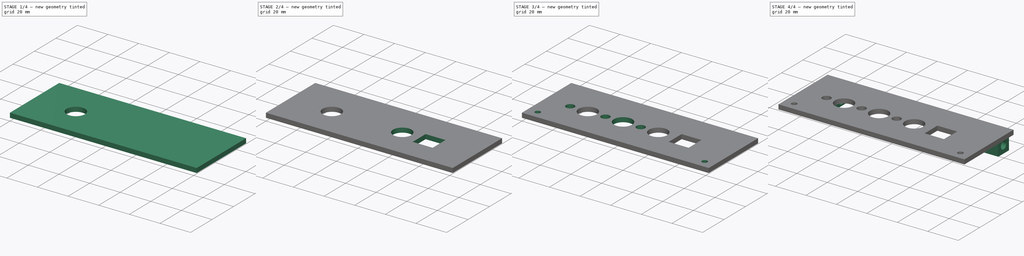
[diagram: build sequence overview — one tinted view per stage of 4, left to right]
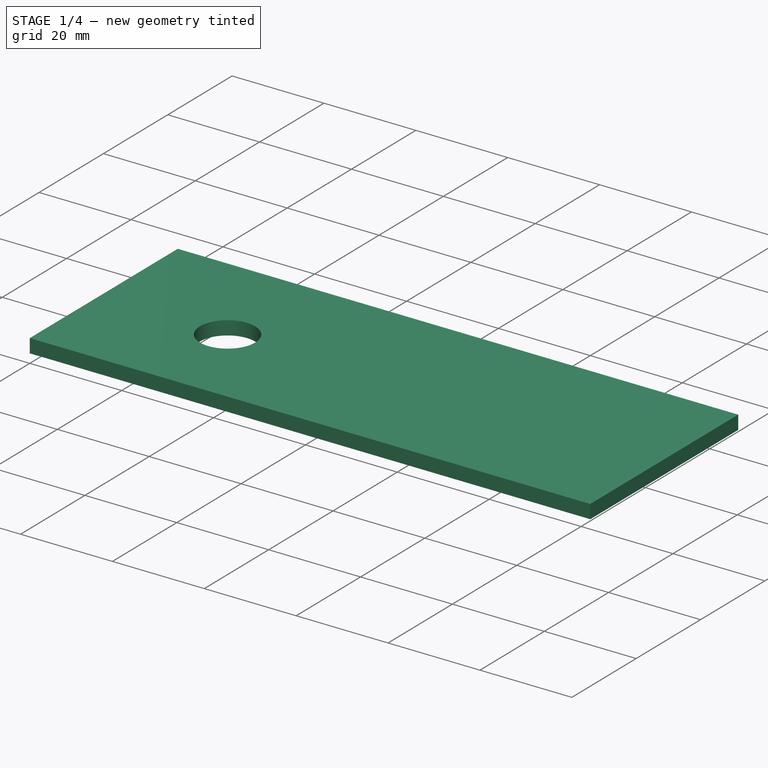
[diagram: stage 1 of 4 — iso view after this stage's code; geometry added in this stage tinted green]
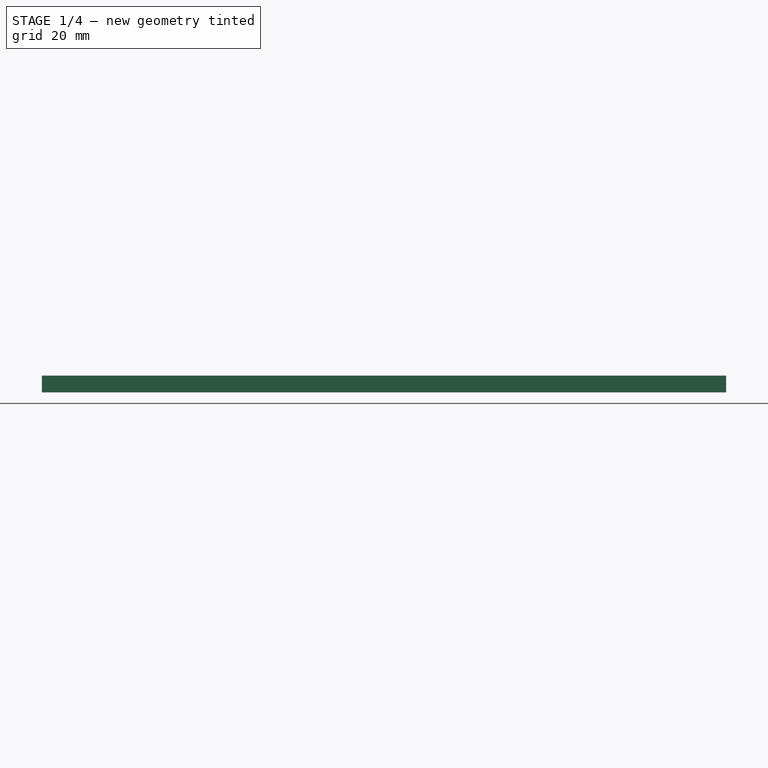
[diagram: stage 1 of 4 — front view after this stage's code; geometry added in this stage tinted green]
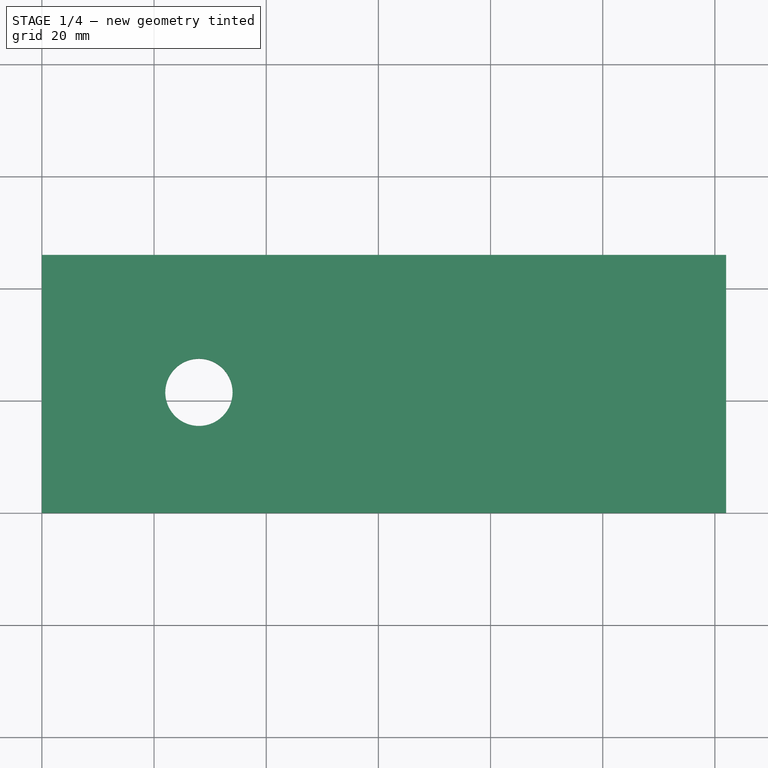
[diagram: stage 1 of 4 — top view after this stage's code; geometry added in this stage tinted green]
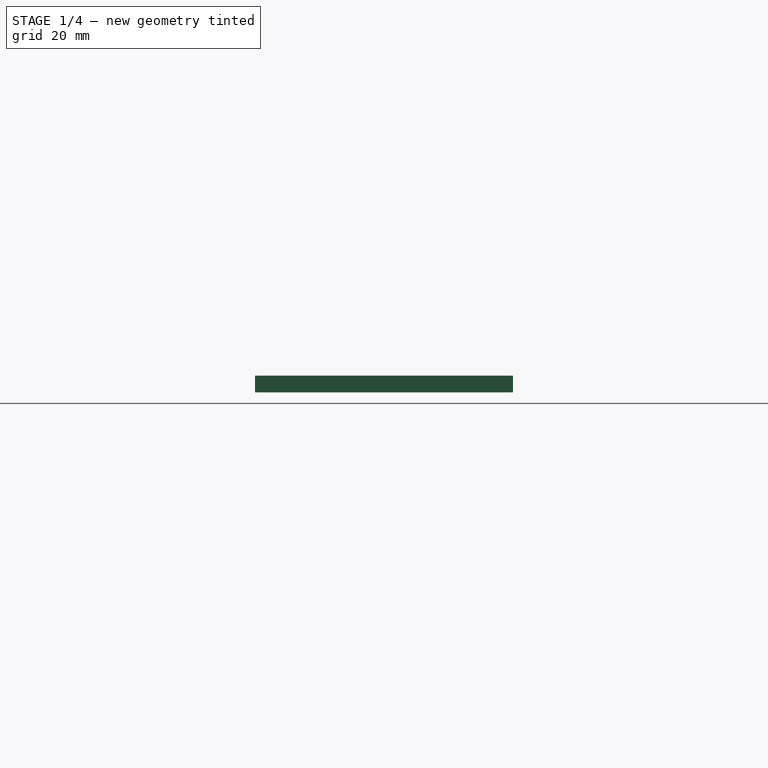
[diagram: stage 1 of 4 — right view after this stage's code; geometry added in this stage tinted green]
FCSTD DOCUMENT  (FreeCAD 0.20R29177 +426 (Git))
Label: LateralWall
License: All rights reserved
LicenseURL: http://en.wikipedia.org/wiki/All_rights_reserved
objects: Sketcher::SketchObject×7, PartDesign::Pocket×6, Part::FeaturePython×2, PartDesign::Pad×1, PartDesign::Body×1, TechDraw::DrawSVGTemplate×1, TechDraw::DrawViewPart×1, TechDraw::DrawPage×1
note: 24 computed .brp shape members not serialized (recipe doc carries the construction recipe); baked Part::Feature solids carry a one-line shape summary decoded from their .brp

FEATURE [Sketcher::SketchObject] Sketch  label="CaseBody"
  FullyConstrained = true
  MapMode = 5
  Support = -> [XY_Plane]
  sketch-geometry (4):
    g0: LineSegment StartX=0 StartY=46 StartZ=0 EndX=122 EndY=46 EndZ=0
    g1: LineSegment StartX=122 StartY=46 StartZ=0 EndX=122 EndY=0 EndZ=0
    g2: LineSegment StartX=122 StartY=0 StartZ=0 EndX=0 EndY=0 EndZ=0
    g3: LineSegment StartX=0 StartY=0 StartZ=0 EndX=0 EndY=46 EndZ=0
  constraints (12):
    c: Coincident(g0,g1)
    c: Coincident(g1,g2)
    c: Coincident(g2,g3)
    c: Coincident(g3,g0)
    c: Horizontal(g0)
    c: Horizontal(g2)
    c: Vertical(g1)
    c: Vertical(g3)
    c: DistanceY(g3,g3) = 46
    c: DistanceX(g2,g2) = 122
    c: DistanceY(g-1,g2) = 0
    c: DistanceX(g-1,g2) = 0
FEATURE [PartDesign::Pad] Pad  label="CaseBody001"
  Direction = (0,0,1)
  Length = 3
  Length2 = 10
  Profile = -> Sketch
  ReferenceAxis = -> Sketch [N_Axis]
  Type = 0
FEATURE [Sketcher::SketchObject] Sketch006  label="RCA-Hole"
  AttachmentOffset = pos=(28,21.5,0) rot=(0,0,1;0rad)
  FullyConstrained = true
  MapMode = 5
  Placement = pos=(28,21.5,0) rot=(0,0,1;0rad)
  Support = -> [XY_Plane]
  sketch-geometry (1):
    g0: Circle CenterX=0 CenterY=0 CenterZ=0 NormalX=0 NormalY=0 NormalZ=1 AngleXU=0 Radius=6
  constraints (2):
    c: Coincident(g0,g-1)
    c: Diameter(g0) = 12
FEATURE [Sketcher::SketchObject] Sketch007  label="RCA-Hole001"
  AttachmentOffset = pos=(51,21.5,0) rot=(0,0,1;0rad)
  FullyConstrained = true
  MapMode = 5
  Placement = pos=(51,21.5,0) rot=(0,0,1;0rad)
  Support = -> [XY_Plane]
  sketch-geometry (1):
    g0: Circle CenterX=0 CenterY=0 CenterZ=0 NormalX=0 NormalY=0 NormalZ=1 AngleXU=0 Radius=6
  constraints (2):
    c: Coincident(g0,g-1)
    c: Diameter(g0) = 12
FEATURE [Sketcher::SketchObject] Sketch008  label="RCA-Hole002"
  AttachmentOffset = pos=(74,21.5,0) rot=(0,0,1;0rad)
  FullyConstrained = true
  MapMode = 5
  Placement = pos=(74,21.5,0) rot=(0,0,1;0rad)
  Support = -> [XY_Plane]
  sketch-geometry (1):
    g0: Circle CenterX=0 CenterY=0 CenterZ=0 NormalX=0 NormalY=0 NormalZ=1 AngleXU=0 Radius=6
  constraints (2):
    c: Coincident(g0,g-1)
    c: Diameter(g0) = 12
FEATURE [Sketcher::SketchObject] Sketch009  label="LEDholes"
  FullyConstrained = true
  MapMode = 5
  Support = -> [XY_Plane]
  sketch-geometry (3):
    g0: Circle CenterX=16.5 CenterY=21.5 CenterZ=0 NormalX=0 NormalY=0 NormalZ=1 AngleXU=0 Radius=2.75
    g1: Circle CenterX=39.5 CenterY=21.5 CenterZ=0 NormalX=0 NormalY=0 NormalZ=1 AngleXU=0 Radius=2.75
    g2: Circle CenterX=62.5 CenterY=21.5 CenterZ=0 NormalX=0 NormalY=0 NormalZ=1 AngleXU=0 Radius=2.75
  constraints (9):
    c: Equal(g0,g1)
    c: Equal(g1,g2)
    c: Diameter(g0) = 5.5
    c: Horizontal(g0,g1)
    c: Horizontal(g1,g2)
    c: DistanceX(g0,g1) = 23
    c: DistanceX(g1,g2) = 23
    c: DistanceY(g-1,g2) = 21.5
    c: DistanceX(g-1,g0) = 16.5
FEATURE [Sketcher::SketchObject] Sketch010  label="USB-B-Hole"
  FullyConstrained = true
  MapMode = 5
  Support = -> [XY_Plane]
  sketch-geometry (4):
    g0: LineSegment StartX=85.5 StartY=26.8 StartZ=0 EndX=98.5 EndY=26.8 EndZ=0
    g1: LineSegment StartX=98.5 StartY=26.8 StartZ=0 EndX=98.5 EndY=14.8 EndZ=0
    g2: LineSegment StartX=98.5 StartY=14.8 StartZ=0 EndX=85.5 EndY=14.8 EndZ=0
    g3: LineSegment StartX=85.5 StartY=14.8 StartZ=0 EndX=85.5 EndY=26.8 EndZ=0
  constraints (12):
    c: Coincident(g0,g1)
    c: Coincident(g1,g2)
    c: Coincident(g2,g3)
    c: Coincident(g3,g0)
    c: Horizontal(g0)
    c: Horizontal(g2)
    c: Vertical(g1)
    c: Vertical(g3)
    c: DistanceX(g0,g0) = 13
    c: DistanceY(g1,g1) = 12
    c: DistanceY(g-1,g2) = 14.8
    c: DistanceX(g-1,g2) = 85.5
FEATURE [PartDesign::Pocket] Pocket  label="RCA-HolePocket"
  BaseFeature = -> Pad
  Direction = (0,0,-1)
  Length = 5
  Length2 = 5
  Profile = -> Sketch006
  ReferenceAxis = -> Sketch006 [N_Axis]
  Reversed = true
  Type = 0
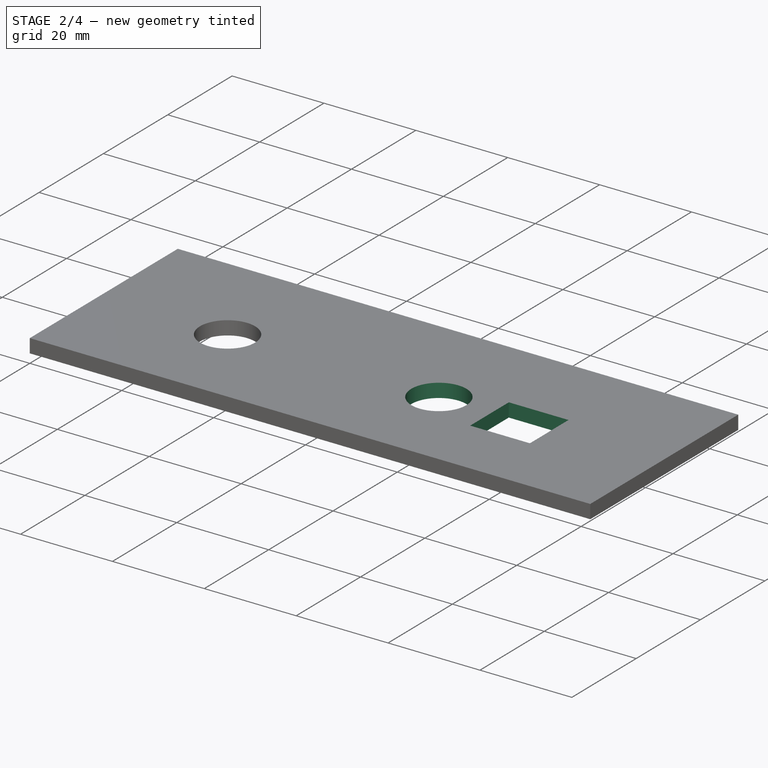
[diagram: stage 2 of 4 — iso view after this stage's code; geometry added in this stage tinted green]
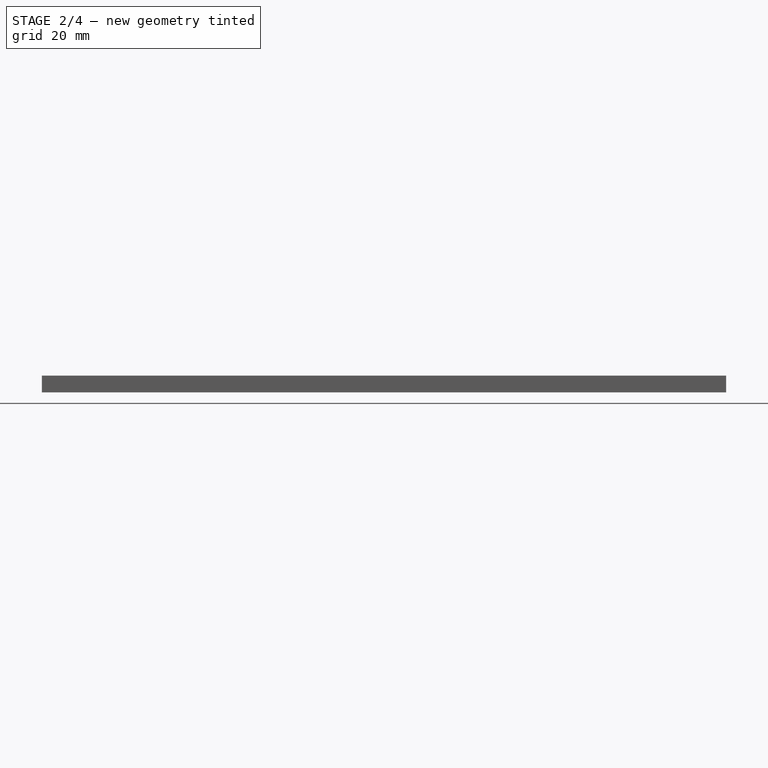
[diagram: stage 2 of 4 — front view after this stage's code; geometry added in this stage tinted green]
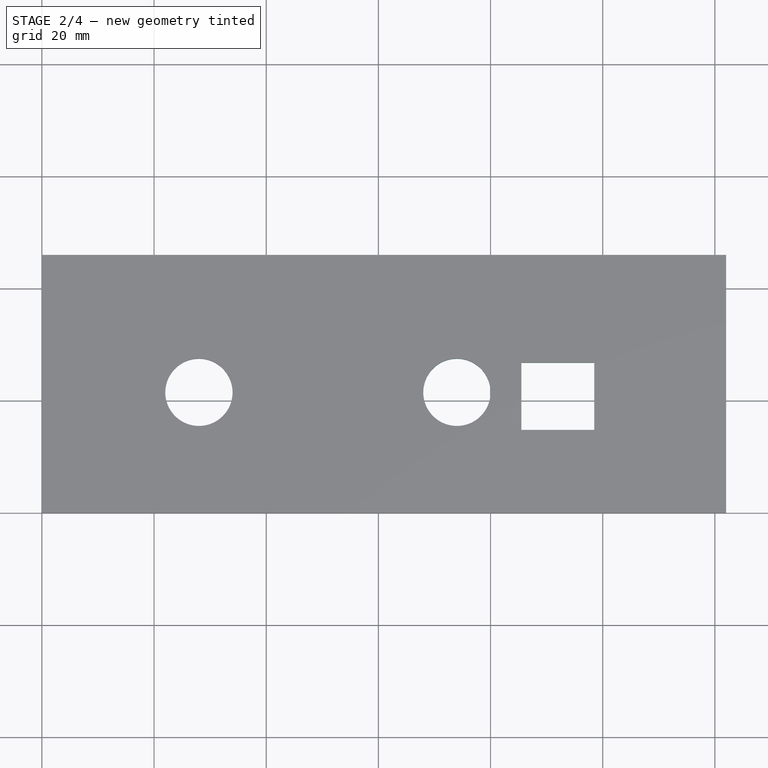
[diagram: stage 2 of 4 — top view after this stage's code; geometry added in this stage tinted green]
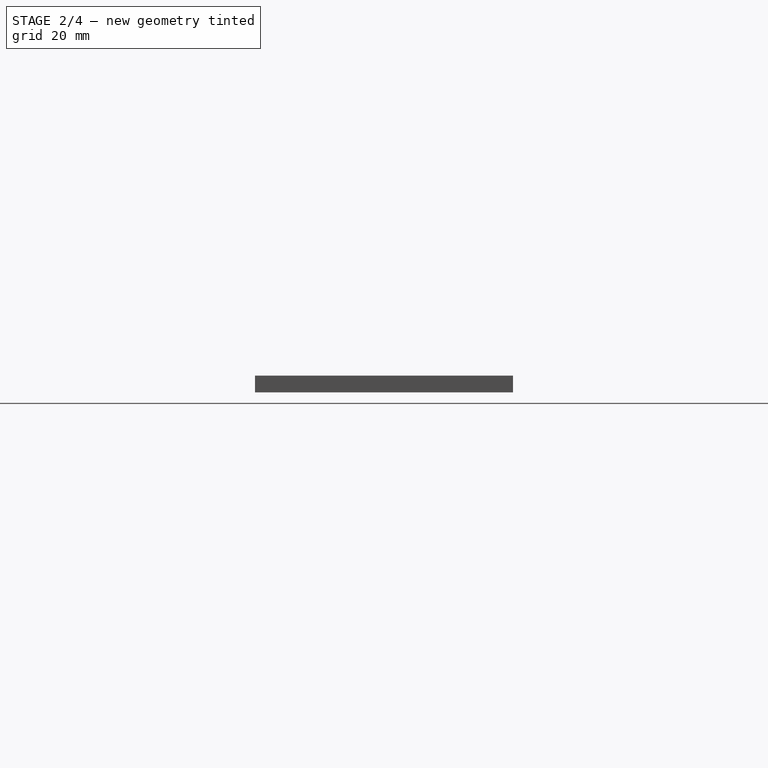
[diagram: stage 2 of 4 — right view after this stage's code; geometry added in this stage tinted green]
FEATURE [PartDesign::Pocket] Pocket001  label="USB-B-Hole001"
  BaseFeature = -> Pocket
  Direction = (0,0,-1)
  Length = 5
  Length2 = 5
  Profile = -> Sketch010
  ReferenceAxis = -> Sketch010 [N_Axis]
  Reversed = true
  Type = 0
FEATURE [PartDesign::Pocket] Pocket002  label="RCA-Hole002Pocket"
  BaseFeature = -> Pocket001
  Direction = (0,0,-1)
  Length = 5
  Length2 = 5
  Profile = -> Sketch008
  ReferenceAxis = -> Sketch008 [N_Axis]
  Reversed = true
  Type = 0
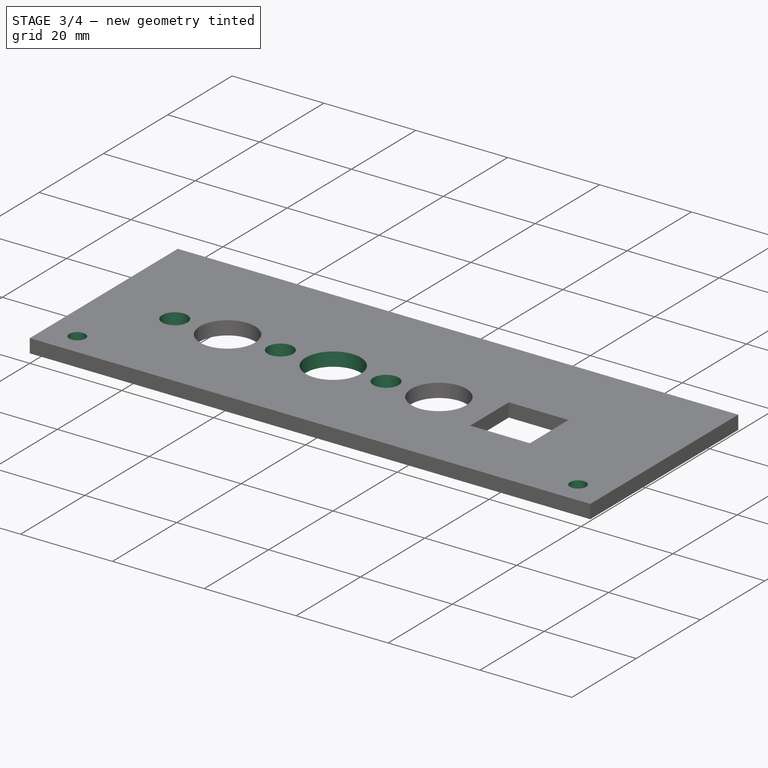
[diagram: stage 3 of 4 — iso view after this stage's code; geometry added in this stage tinted green]
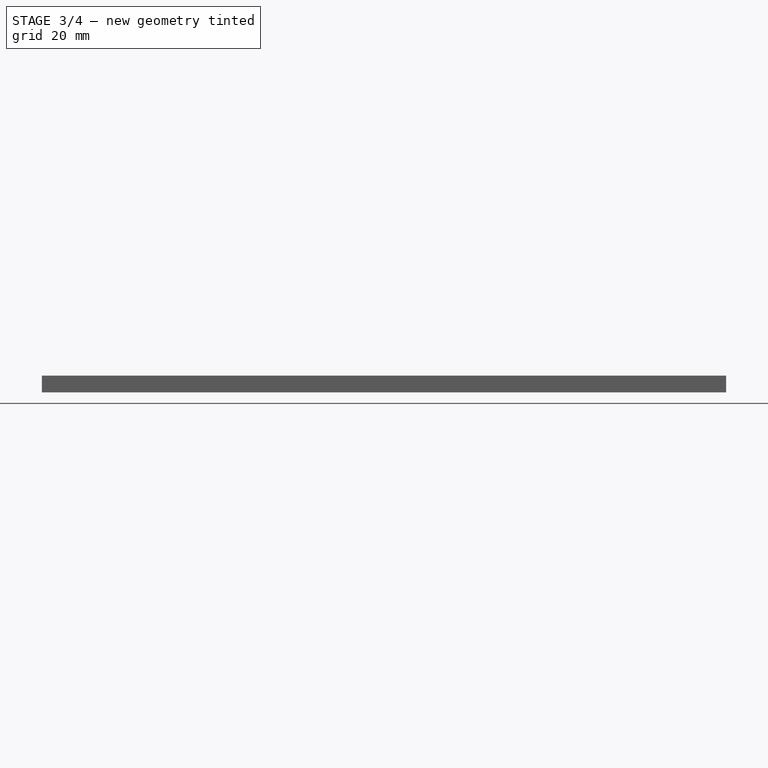
[diagram: stage 3 of 4 — front view after this stage's code; geometry added in this stage tinted green]
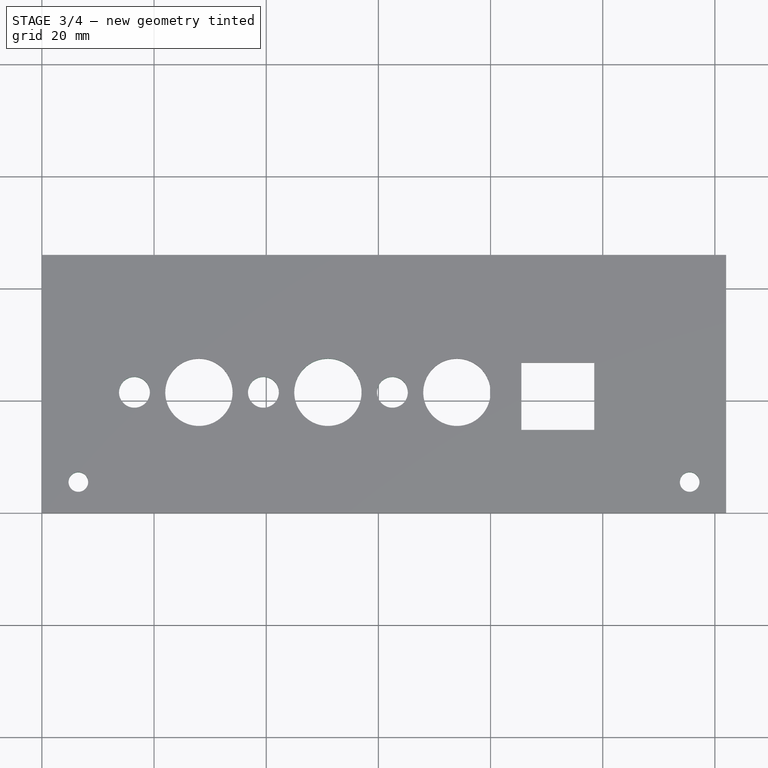
[diagram: stage 3 of 4 — top view after this stage's code; geometry added in this stage tinted green]
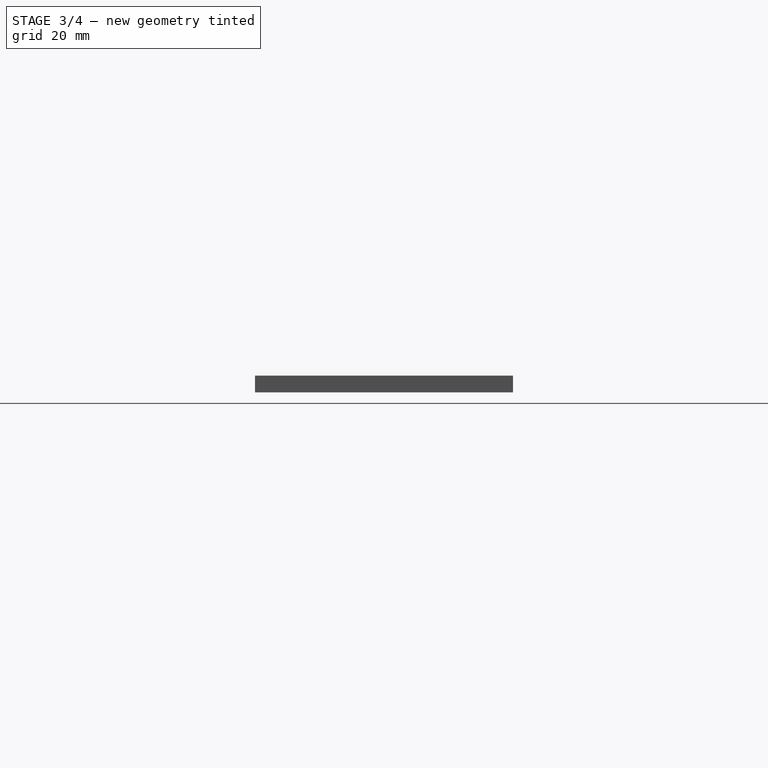
[diagram: stage 3 of 4 — right view after this stage's code; geometry added in this stage tinted green]
FEATURE [PartDesign::Pocket] Pocket003  label="RCA-Hole001Pocket"
  BaseFeature = -> Pocket002
  Direction = (0,0,-1)
  Length = 5
  Length2 = 5
  Profile = -> Sketch007
  ReferenceAxis = -> Sketch007 [N_Axis]
  Reversed = true
  Type = 0
FEATURE [PartDesign::Pocket] Pocket004  label="LEDholes001"
  BaseFeature = -> Pocket003
  Direction = (0,0,-1)
  Length = 5
  Length2 = 5
  Profile = -> Sketch009
  ReferenceAxis = -> Sketch009 [N_Axis]
  Reversed = true
  Type = 0
FEATURE [Sketcher::SketchObject] Sketch011  label="ScrewHoles"
  FullyConstrained = true
  MapMode = 5
  Support = -> [XY_Plane]
  sketch-geometry (2):
    g0: Circle CenterX=6.5 CenterY=5.5 CenterZ=0 NormalX=0 NormalY=0 NormalZ=1 AngleXU=0 Radius=1.75
    g1: Circle CenterX=115.5 CenterY=5.5 CenterZ=0 NormalX=0 NormalY=0 NormalZ=1 AngleXU=0 Radius=1.75
  constraints (6):
    c: Equal(g0,g1)
    c: Diameter(g0) = 3.5
    c: Horizontal(g0,g1)
    c: DistanceY(g-1,g0) = 5.5
    c: DistanceX(g0,g1) = 109
    c: DistanceX(g-1,g0) = 6.5
FEATURE [PartDesign::Pocket] Pocket005  label="ScrewHoles001"
  BaseFeature = -> Pocket004
  Direction = (0,0,-1)
  Length = 5
  Length2 = 5
  Profile = -> Sketch011
  ReferenceAxis = -> Sketch011 [N_Axis]
  Reversed = true
  Type = 0
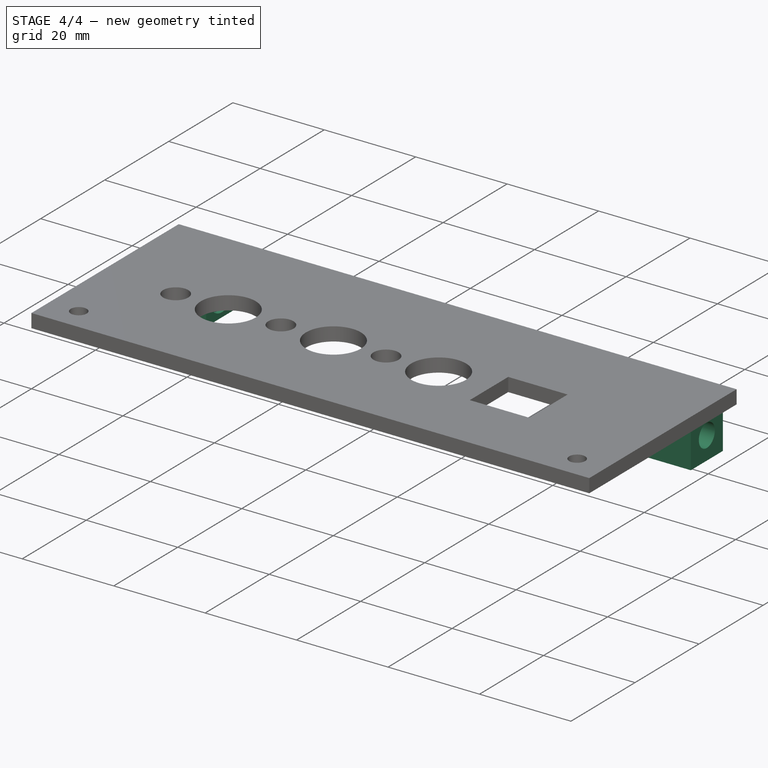
[diagram: stage 4 of 4 — iso view after this stage's code; geometry added in this stage tinted green]
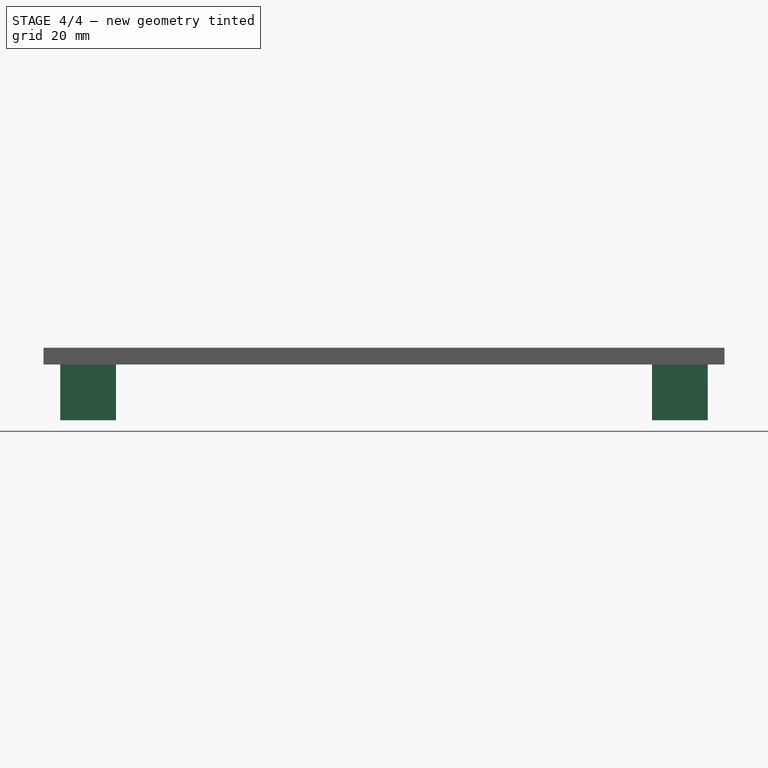
[diagram: stage 4 of 4 — front view after this stage's code; geometry added in this stage tinted green]
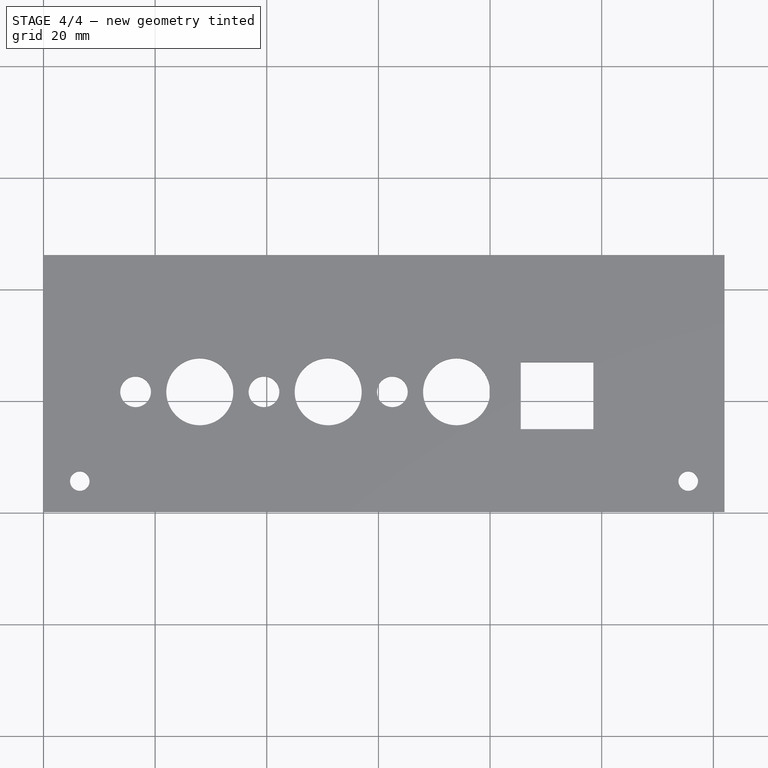
[diagram: stage 4 of 4 — top view after this stage's code; geometry added in this stage tinted green]
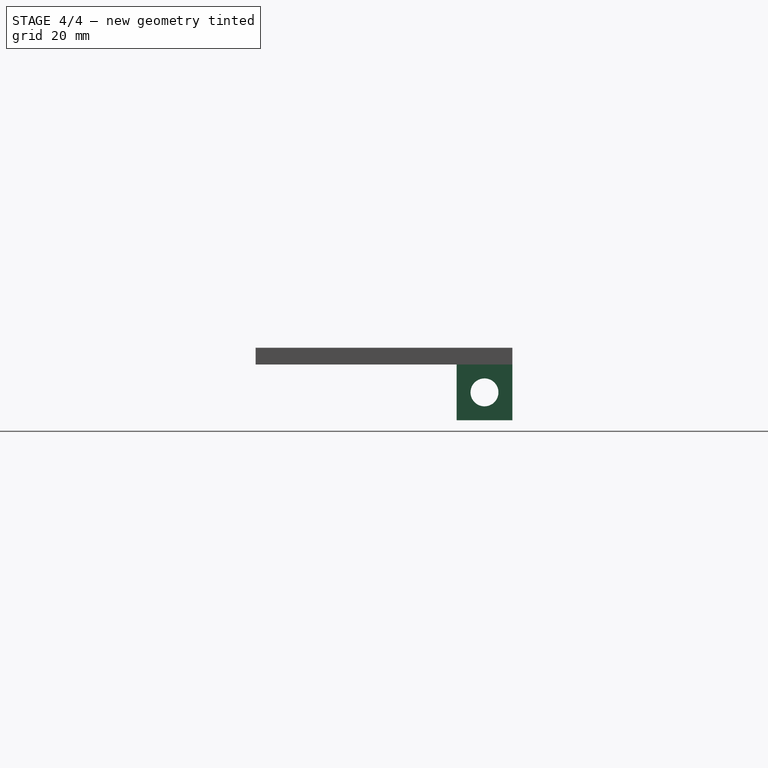
[diagram: stage 4 of 4 — right view after this stage's code; geometry added in this stage tinted green]
FEATURE [PartDesign::Body] Body
  Group = -> [Sketch,Pad,Sketch006,Sketch007,Sketch008,Sketch009,Sketch010,Pocket,Pocket001,Pocket002,Pocket003,Pocket004,Sketch011,Pocket005]
  Origin = -> Origin
  Tip = -> Pocket005
FEATURE [Part::FeaturePython] b_M3x9_001_  label="M3x9_001"  # a2plus imported part (geometry in sourceFile) (typed FeaturePython)
  Placement = pos=(13,41,-5) rot=(0,-1,0;1.5708rad)
  a2p_Version = 0.4.60n
  fixedPosition = true
  objectType = a2pPart
  sourceFile = .\..\..\..\..\3D Printing\Objects-Projects-FreeCAD\Sockets&Holders&Connectors\NutHolders\RivetNut\M3x9.FCStd
  subassemblyImport = false
  timeLastImport = 1.68579e+09
  updateColors = true
FEATURE [Part::FeaturePython] b_M3x9_001_001  label="M3x9_002"  # a2plus imported part (geometry in sourceFile) (typed FeaturePython)
  Placement = pos=(109,41,-5) rot=(0.707107,0,0.707107;3.14159rad)
  a2p_Version = 0.4.60n
  fixedPosition = true
  objectType = a2pPart
  sourceFile = .\..\..\..\..\3D Printing\Objects-Projects-FreeCAD\Sockets&Holders&Connectors\NutHolders\RivetNut\M3x9.FCStd
  subassemblyImport = false
  timeLastImport = 1.68579e+09
  updateColors = true
FEATURE [TechDraw::DrawSVGTemplate] Template
  EditableTexts = Designed_by_Name=Radmilo Felix; Drawing_number=Drawing number; FC-Date=10.06.2023; FC-SC=1:1; FC-SH=Sheet; FC-Title=Lateral Wall - L; Subtitle=Subtitle; Weight=Weight
  Height = 210
  Orientation = 1
  Width = 297
FEATURE [TechDraw::DrawViewPart] View  label="Lateral Wall - L"
  CoarseView = false
  Direction = (0,0,1)
  Focus = 100
  HardHidden = false
  IsoCount = 0
  IsoHidden = false
  IsoVisible = false
  LockPosition = false
  Perspective = false
  Rotation = 180
  ScaleType = 0
  SeamHidden = false
  SeamVisible = true
  SmoothHidden = false
  SmoothVisible = true
  Source = -> [Pocket005]
  X = 154.721
  XDirection = (-1,0,0)
  Y = 132.238
FEATURE [TechDraw::DrawPage] Page
  KeepUpdated = true
  NextBalloonIndex = 1
  ProjectionType = 0
  Template = -> Template
  Views = -> [View]
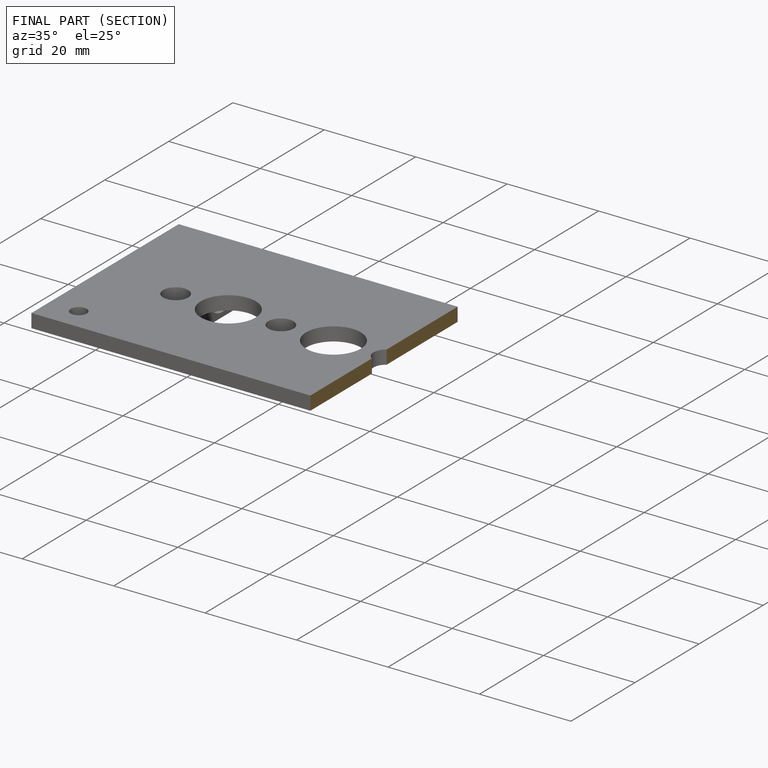
[diagram: finished part — half-section view (interior)]
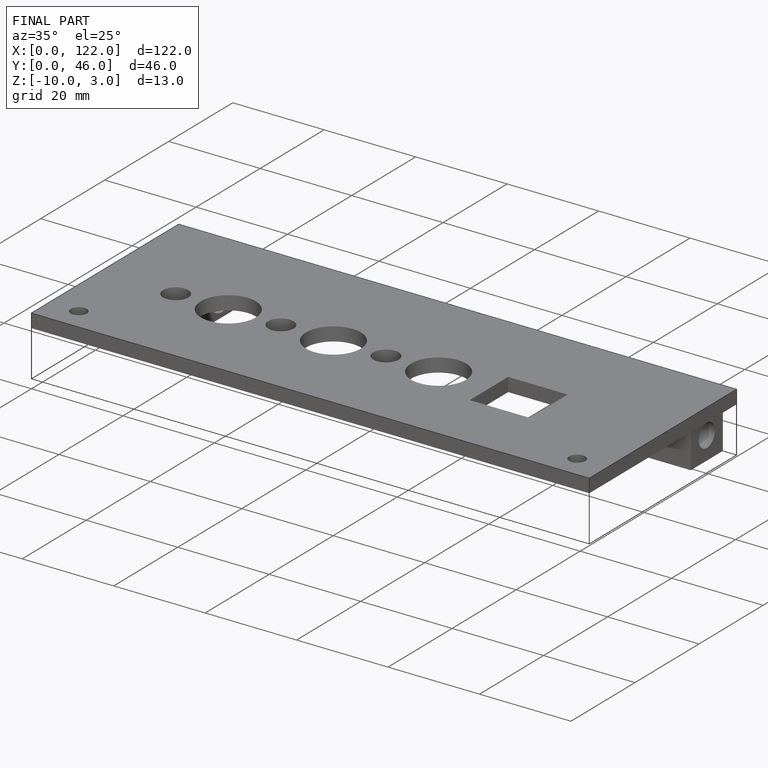
[diagram: finished part — iso view with bounding-box wireframe]
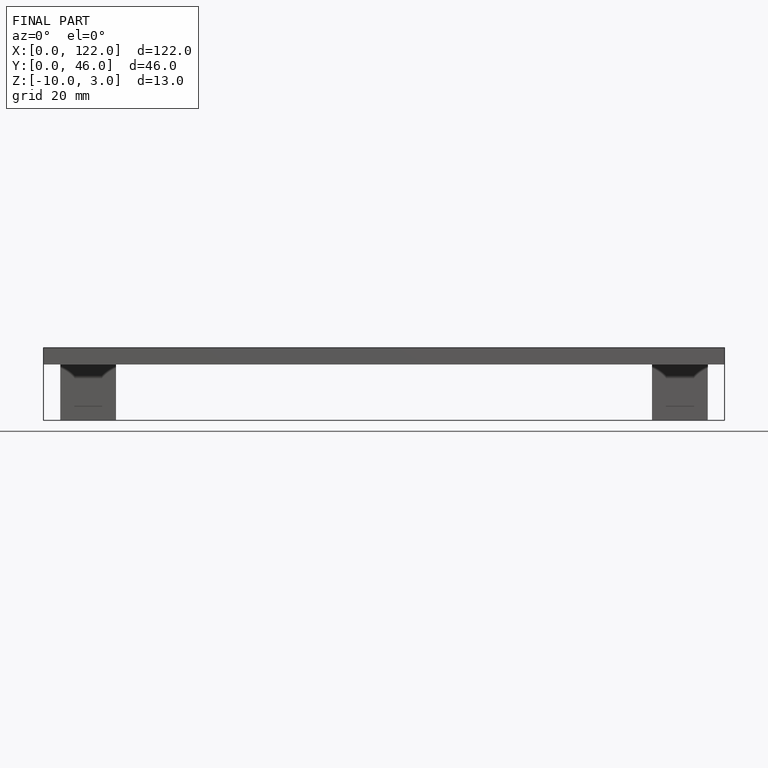
[diagram: finished part — front view with bounding-box wireframe]
